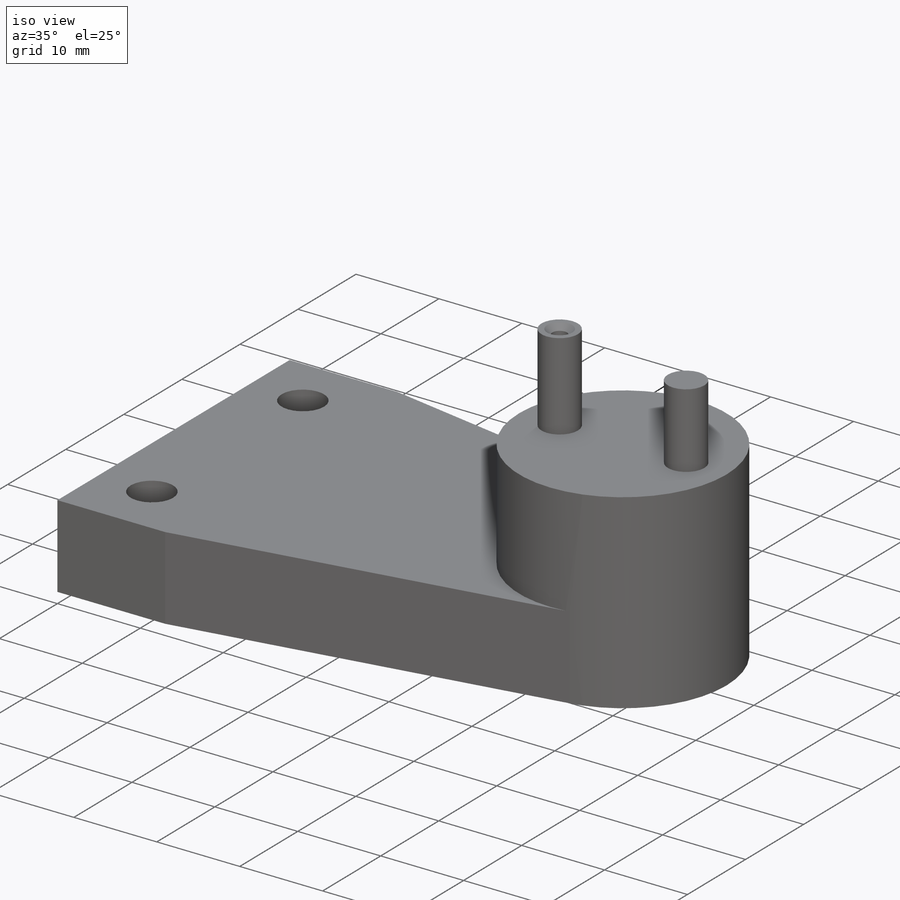
[diagram: iso view]
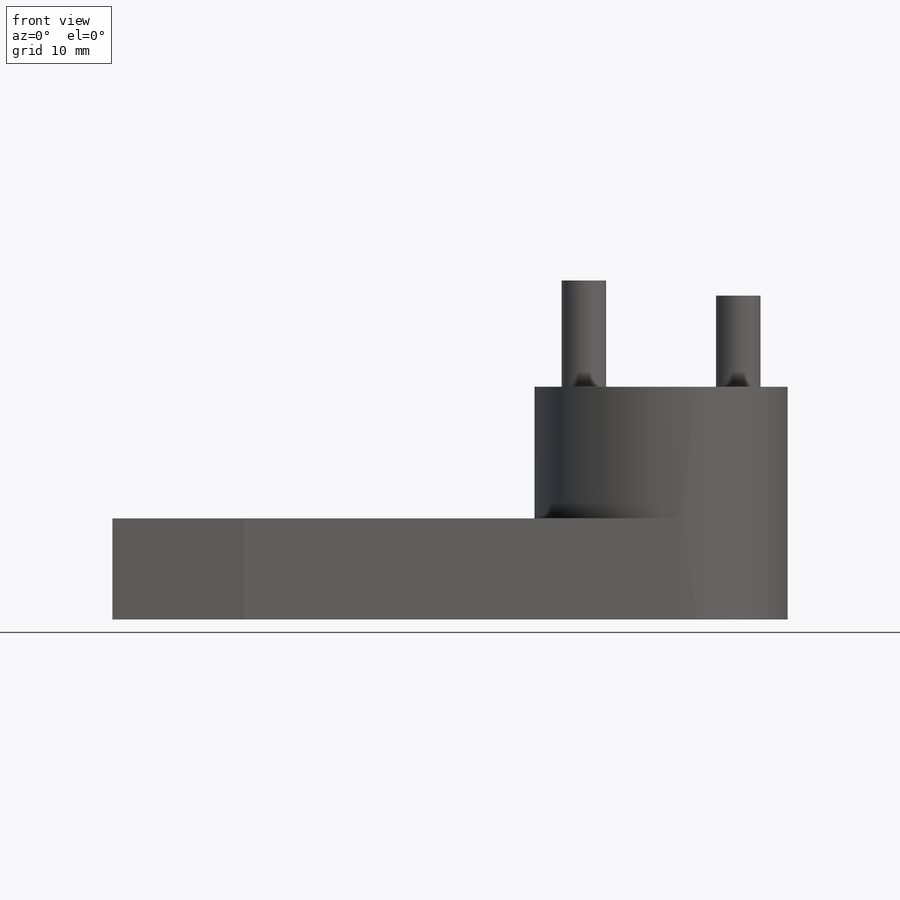
[diagram: front view]
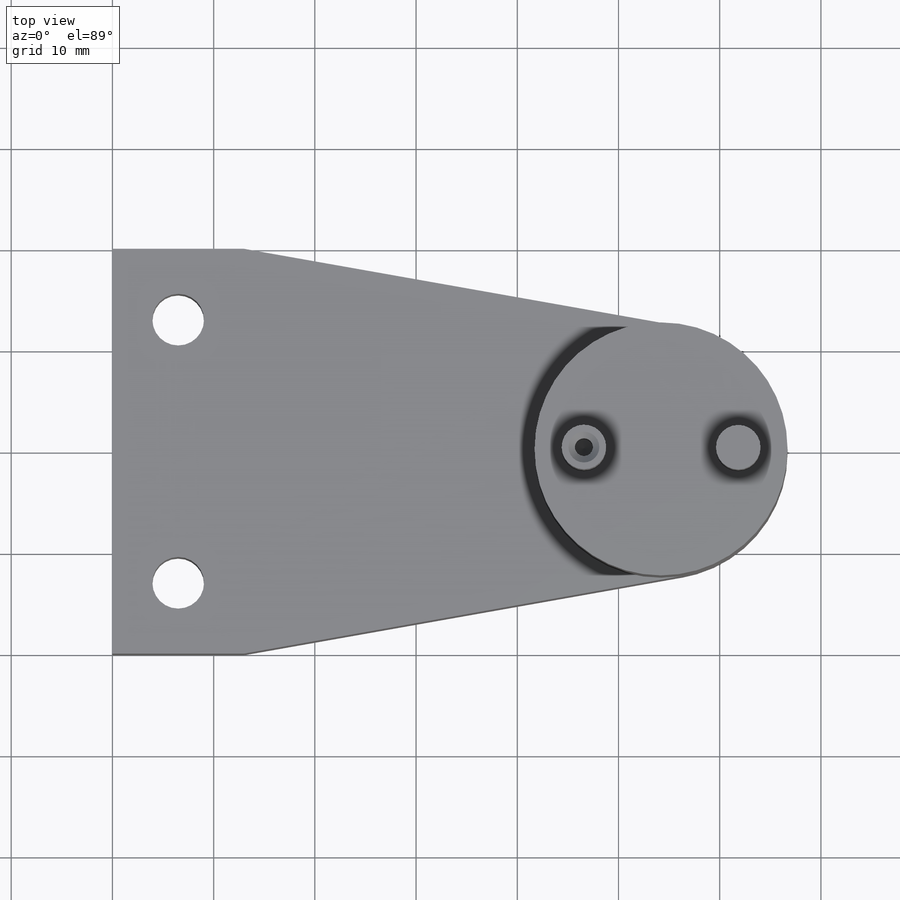
[diagram: top view]
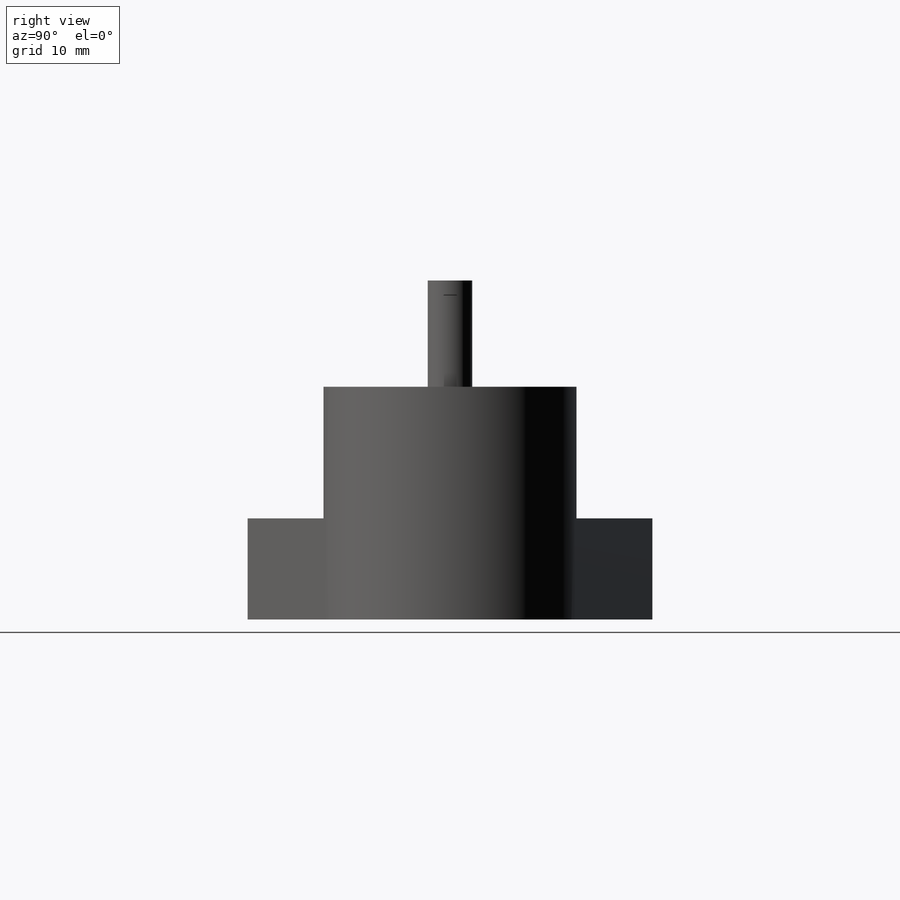
[diagram: right view]
SOLIDWORKS PART (.sldprt)
format: sldprt  version: not decoded by parser v0  size: 251,392 bytes
history: native  units: mm
features: sketch x8, extrude x4, hole x2, material x1, mirror x1, thread x1 (+11 scaffold rows collapsed)
feature tree (28):
  scaffold x11  (default folders/planes/origin — collapsed)
  material  "6061-T6 (SS)"
  sketch  "Sketch1"  dims[c1.D3=25.0mm c1.D1=13.0mm c1.D2=41.205mm c1.D4=20.0mm c2.D2=41.205mm]
  extrude  "Boss-Extrude1"  Depth=10mm
  mirror  "Mirror1"
  sketch  "Sketch2"
  extrude  "Boss-Extrude2"  Depth=13mm
  hole  "#10 Clearance Hole1"  Diameter=5.1054mm Depth=135.89mm
  sketch  "Sketch5"  dims[D1=13.0mm]
  sketch  "Sketch4"  dims[hole-wizard template sketch: 47 standard entries collapsed; hole parameters kept: c15.Hole Depth=135.89mm c15.D3=~14.816244mm c15.Drill Angle=118.0deg]
  sketch  "Sketch6"  dims[D2=4.4mm D1=15.25mm]
  extrude  "Boss-Extrude3"  Depth=9mm
  sketch  "Sketch7"
  extrude  "Boss-Extrude4"  Depth=1.5mm
  hole  "#2-56 Tapped Hole1"  Diameter=1.778mm Depth=6.64mm
  sketch  "Sketch9"
  sketch  "Sketch8"  dims[hole-wizard template sketch: 41 standard entries collapsed; hole parameters kept: c13.Near C'Sink Dia.=3.048mm c13.D4=~33.297463mm c13.Near C'Sink Angle=90.0deg c14.D5=~14.816244mm c14.Drill Angle=118.0deg]
  thread  "Hole Thread2"  Diameter=4.37mm  [1 undecoded]
decode coverage: 12 of 16 modeling features carry decoded parameters
note: ~ marks probable driven/reference dimensions
note: 1 parameter value undecoded
note: suppression state not decoded; provenance and decode notes live in map.json
